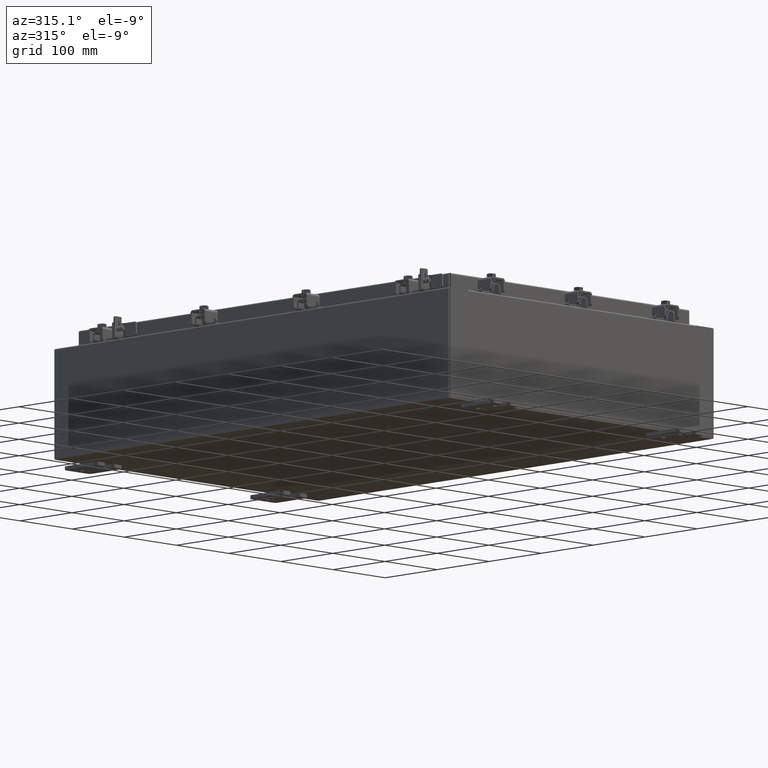
[diagram: clean part render]
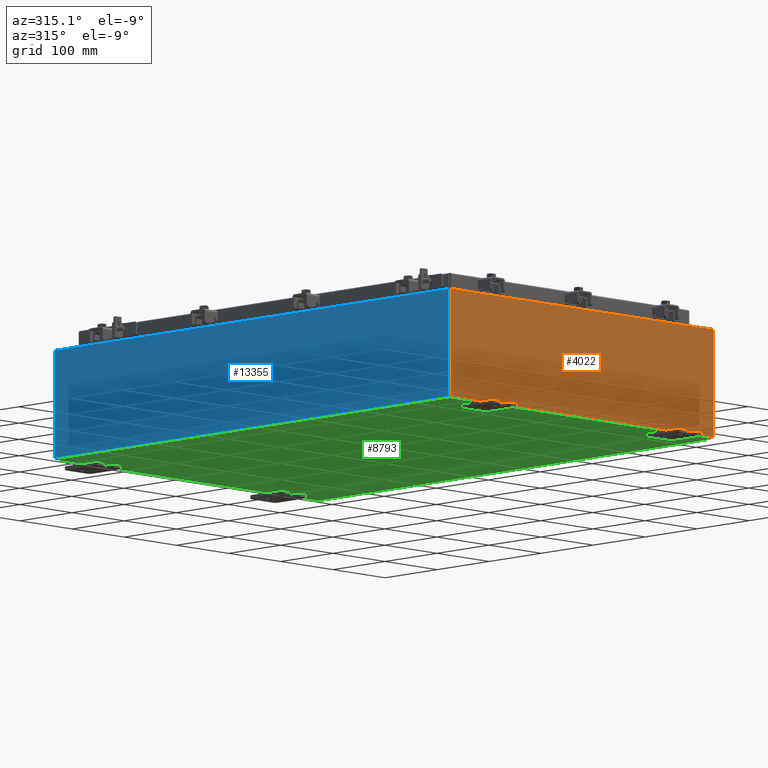
[diagram: same view with three faces highlighted in distinct colors, each labeled with its STEP entity id]
A machine part, auxiliary view with three faces highlighted in distinct colors.
Their STEP definitions:

[orange] entity #4022 — the highlighted planar face has unit normal (-0, 1, -0).
#361 = LINE ( 'NONE', #4960, #18876 ) ;
#617 = AXIS2_PLACEMENT_3D ( 'NONE', #15962, #12164, #10840 ) ;
#765 = EDGE_CURVE ( 'NONE', #15380, #2834, #9343, .T. ) ;
#1337 = DIRECTION ( 'NONE',  ( -0.0000000000000000000, -0.0000000000000000000, 1.000000000000000000 ) ) ;
#1444 = DIRECTION ( 'NONE',  ( 0.0000000000000000000, 0.0000000000000000000, -1.000000000000000000 ) ) ;
#1498 = LINE ( 'NONE', #19667, #10547 ) ;
#1935 = ORIENTED_EDGE ( 'NONE', *, *, #16333, .F. ) ;
#1980 = EDGE_CURVE ( 'NONE', #3355, #13445, #17115, .T. ) ;
#2502 = DIRECTION ( 'NONE',  ( -6.510859170600007400E-014, 0.0000000000000000000, -1.000000000000000000 ) ) ;
#2680 = VERTEX_POINT ( 'NONE', #15610 ) ;
#2730 = ORIENTED_EDGE ( 'NONE', *, *, #14620, .T. ) ;
#2772 = EDGE_CURVE ( 'NONE', #13081, #22102, #8419, .T. ) ;
#2834 = VERTEX_POINT ( 'NONE', #8392 ) ;
#2996 = LINE ( 'NONE', #12126, #5269 ) ;
#3180 = CIRCLE ( 'NONE', #20034, 0.01867500000000003900 ) ;
#3181 = CARTESIAN_POINT ( 'NONE',  ( 8.655875000000000000, 0.0000000000000000000, 2.874950000000000600 ) ) ;
#3355 = VERTEX_POINT ( 'NONE', #12129 ) ;
#3382 = ORIENTED_EDGE ( 'NONE', *, *, #18036, .F. ) ;
#3774 = VERTEX_POINT ( 'NONE', #17559 ) ;
#3872 = EDGE_LOOP ( 'NONE', ( #5293, #3382, #20896, #19056, #1935, #18359, #15242, #15499, #2730, #12896, #22228, #5563 ) ) ;
#3876 = LINE ( 'NONE', #15454, #17058 ) ;
#4003 = VECTOR ( 'NONE', #2502, 39.37007874015748100 ) ;
#4022 = ADVANCED_FACE ( 'NONE', ( #19827 ), #14171, .F. ) ;
#4045 = VECTOR ( 'NONE', #13422, 39.37007874015748100 ) ;
#4200 = DIRECTION ( 'NONE',  ( 0.0000000000000000000, 0.0000000000000000000, -1.000000000000000000 ) ) ;
#4309 = DIRECTION ( 'NONE',  ( 1.000000000000000000, 0.0000000000000000000, 0.0000000000000000000 ) ) ;
#4634 = VECTOR ( 'NONE', #22144, 39.37007874015748100 ) ;
#4960 = CARTESIAN_POINT ( 'NONE',  ( -9.925300000000000000, 0.0000000000000000000, 2.925300000000000500 ) ) ;
#5269 = VECTOR ( 'NONE', #1337, 39.37007874015748100 ) ;
#5293 = ORIENTED_EDGE ( 'NONE', *, *, #765, .F. ) ;
#5563 = ORIENTED_EDGE ( 'NONE', *, *, #7514, .T. ) ;
#6762 = CARTESIAN_POINT ( 'NONE',  ( -8.674549999999996400, 0.0000000000000000000, 2.874950000000000600 ) ) ;
#7065 = VERTEX_POINT ( 'NONE', #21182 ) ;
#7195 = CARTESIAN_POINT ( 'NONE',  ( -8.655874999999996400, 0.0000000000000000000, 2.874950000000000600 ) ) ;
#7514 = EDGE_CURVE ( 'NONE', #19565, #2834, #361, .T. ) ;
#7604 = VECTOR ( 'NONE', #4200, 39.37007874015748100 ) ;
#8230 = DIRECTION ( 'NONE',  ( -0.0000000000000000000, 1.000000000000000000, -0.0000000000000000000 ) ) ;
#8392 = CARTESIAN_POINT ( 'NONE',  ( -8.674549999999996400, 0.0000000000000000000, 2.925300000000000500 ) ) ;
#8419 = CIRCLE ( 'NONE', #20561, 0.01867500000000003900 ) ;
#8449 = CARTESIAN_POINT ( 'NONE',  ( -8.674549999999996400, -0.0000000000000000000, 0.0000000000000000000 ) ) ;
#9001 = DIRECTION ( 'NONE',  ( 0.0000000000000000000, 0.0000000000000000000, -1.000000000000000000 ) ) ;
#9343 = LINE ( 'NONE', #8449, #22969 ) ;
#9363 = VERTEX_POINT ( 'NONE', #22438 ) ;
#9443 = LINE ( 'NONE', #18604, #4634 ) ;
#10065 = CARTESIAN_POINT ( 'NONE',  ( -8.637199999999996400, -0.0000000000000000000, 2.874950000000000600 ) ) ;
#10547 = VECTOR ( 'NONE', #21462, 39.37007874015748100 ) ;
#10840 = DIRECTION ( 'NONE',  ( 0.0000000000000000000, -0.0000000000000000000, -1.000000000000000000 ) ) ;
#11354 = EDGE_CURVE ( 'NONE', #9363, #7065, #16000, .T. ) ;
#11639 = CARTESIAN_POINT ( 'NONE',  ( 8.637200000000000000, 0.0000000000000000000, 0.0000000000000000000 ) ) ;
#12126 = CARTESIAN_POINT ( 'NONE',  ( -9.925300000000000000, 0.0000000000000000000, 2.925300000000000500 ) ) ;
#12129 = CARTESIAN_POINT ( 'NONE',  ( -8.637199999999996400, 1.024442997624098700E-016, 2.912300000000000600 ) ) ;
#12164 = DIRECTION ( 'NONE',  ( 0.0000000000000000000, -1.000000000000000000, 0.0000000000000000000 ) ) ;
#12839 = EDGE_CURVE ( 'NONE', #2680, #3774, #3876, .T. ) ;
#12896 = ORIENTED_EDGE ( 'NONE', *, *, #12839, .T. ) ;
#13081 = VERTEX_POINT ( 'NONE', #21479 ) ;
#13263 = CARTESIAN_POINT ( 'NONE',  ( 8.674549999999813500, -0.0000000000000000000, -5.647877341832707700E-013 ) ) ;
#13422 = DIRECTION ( 'NONE',  ( 0.0000000000000000000, 0.0000000000000000000, 1.000000000000000000 ) ) ;
#13434 = CARTESIAN_POINT ( 'NONE',  ( 8.637200000000000000, 0.0000000000000000000, 2.874950000000000600 ) ) ;
#13445 = VERTEX_POINT ( 'NONE', #10065 ) ;
#14171 = PLANE ( 'NONE',  #617 ) ;
#14494 = VERTEX_POINT ( 'NONE', #19780 ) ;
#14620 = EDGE_CURVE ( 'NONE', #7065, #2680, #9443, .T. ) ;
#15242 = ORIENTED_EDGE ( 'NONE', *, *, #18281, .F. ) ;
#15380 = VERTEX_POINT ( 'NONE', #6762 ) ;
#15454 = CARTESIAN_POINT ( 'NONE',  ( -9.925300000000000000, 0.0000000000000000000, -2.925299999999999600 ) ) ;
#15499 = ORIENTED_EDGE ( 'NONE', *, *, #11354, .T. ) ;
#15610 = CARTESIAN_POINT ( 'NONE',  ( 9.925300000000000000, 0.0000000000000000000, -2.925299999999999600 ) ) ;
#15962 = CARTESIAN_POINT ( 'NONE',  ( 0.0000000000000000000, 0.0000000000000000000, 0.0000000000000000000 ) ) ;
#16000 = LINE ( 'NONE', #20437, #16565 ) ;
#16333 = EDGE_CURVE ( 'NONE', #22102, #14494, #23054, .T. ) ;
#16565 = VECTOR ( 'NONE', #4309, 39.37007874015748100 ) ;
#16729 = EDGE_CURVE ( 'NONE', #3355, #14494, #1498, .T. ) ;
#17058 = VECTOR ( 'NONE', #17206, 39.37007874015748100 ) ;
#17115 = LINE ( 'NONE', #20560, #7604 ) ;
#17206 = DIRECTION ( 'NONE',  ( -1.000000000000000000, -0.0000000000000000000, -0.0000000000000000000 ) ) ;
#17510 = DIRECTION ( 'NONE',  ( 1.000000000000000000, 0.0000000000000000000, 0.0000000000000000000 ) ) ;
#17559 = CARTESIAN_POINT ( 'NONE',  ( -9.925300000000000000, 0.0000000000000000000, -2.925299999999999600 ) ) ;
#17793 = LINE ( 'NONE', #13263, #4003 ) ;
#18036 = EDGE_CURVE ( 'NONE', #13445, #15380, #3180, .T. ) ;
#18265 = DIRECTION ( 'NONE',  ( 0.0000000000000000000, 0.0000000000000000000, 1.000000000000000000 ) ) ;
#18281 = EDGE_CURVE ( 'NONE', #9363, #13081, #17793, .T. ) ;
#18359 = ORIENTED_EDGE ( 'NONE', *, *, #2772, .F. ) ;
#18604 = CARTESIAN_POINT ( 'NONE',  ( 9.925300000000000000, 0.0000000000000000000, 2.925300000000000500 ) ) ;
#18876 = VECTOR ( 'NONE', #17510, 39.37007874015748100 ) ;
#19056 = ORIENTED_EDGE ( 'NONE', *, *, #16729, .T. ) ;
#19565 = VERTEX_POINT ( 'NONE', #20945 ) ;
#19667 = CARTESIAN_POINT ( 'NONE',  ( -8.637200000000000000, 1.024442997624098700E-016, 2.912300000000000600 ) ) ;
#19687 = DIRECTION ( 'NONE',  ( -0.0000000000000000000, 1.000000000000000000, -0.0000000000000000000 ) ) ;
#19780 = CARTESIAN_POINT ( 'NONE',  ( 8.637200000000000000, 0.0000000000000000000, 2.912300000000000600 ) ) ;
#19827 = FACE_OUTER_BOUND ( 'NONE', #3872, .T. ) ;
#20034 = AXIS2_PLACEMENT_3D ( 'NONE', #7195, #19687, #9001 ) ;
#20437 = CARTESIAN_POINT ( 'NONE',  ( -9.925300000000000000, 0.0000000000000000000, 2.925300000000000500 ) ) ;
#20560 = CARTESIAN_POINT ( 'NONE',  ( -8.637199999999996400, -0.0000000000000000000, 0.0000000000000000000 ) ) ;
#20561 = AXIS2_PLACEMENT_3D ( 'NONE', #3181, #8230, #1444 ) ;
#20896 = ORIENTED_EDGE ( 'NONE', *, *, #1980, .F. ) ;
#20945 = CARTESIAN_POINT ( 'NONE',  ( -9.925300000000000000, 0.0000000000000000000, 2.925300000000000500 ) ) ;
#21182 = CARTESIAN_POINT ( 'NONE',  ( 9.925300000000000000, 0.0000000000000000000, 2.925300000000000500 ) ) ;
#21462 = DIRECTION ( 'NONE',  ( 1.000000000000000000, 0.0000000000000000000, 0.0000000000000000000 ) ) ;
#21479 = CARTESIAN_POINT ( 'NONE',  ( 8.674550000000000000, 0.0000000000000000000, 2.874950000000000600 ) ) ;
#22102 = VERTEX_POINT ( 'NONE', #13434 ) ;
#22144 = DIRECTION ( 'NONE',  ( 0.0000000000000000000, 0.0000000000000000000, -1.000000000000000000 ) ) ;
#22228 = ORIENTED_EDGE ( 'NONE', *, *, #22237, .T. ) ;
#22237 = EDGE_CURVE ( 'NONE', #3774, #19565, #2996, .T. ) ;
#22438 = CARTESIAN_POINT ( 'NONE',  ( 8.674550000000001800, 0.0000000000000000000, 2.925300000000000500 ) ) ;
#22969 = VECTOR ( 'NONE', #18265, 39.37007874015748100 ) ;
#23054 = LINE ( 'NONE', #11639, #4045 ) ;

[blue] entity #13355 — the highlighted planar face has unit normal (1, 0, 0).
#284 = VERTEX_POINT ( 'NONE', #18556 ) ;
#694 = VECTOR ( 'NONE', #6814, 39.37007874015748100 ) ;
#1364 = CARTESIAN_POINT ( 'NONE',  ( -10.00000000000000000, 14.92530000000000500, -3.345627304943080600E-014 ) ) ;
#2309 = CARTESIAN_POINT ( 'NONE',  ( -10.00000000000002000, 14.92530000000000500, 5.837599999999999200 ) ) ;
#2690 = VERTEX_POINT ( 'NONE', #4555 ) ;
#3314 = VECTOR ( 'NONE', #17147, 39.37007874015748100 ) ;
#3914 = AXIS2_PLACEMENT_3D ( 'NONE', #18724, #9824, #22268 ) ;
#4555 = CARTESIAN_POINT ( 'NONE',  ( -10.00000000000000000, 14.92530000000000500, 0.01299999999999985900 ) ) ;
#4763 = VERTEX_POINT ( 'NONE', #16676 ) ;
#5458 = CARTESIAN_POINT ( 'NONE',  ( -10.00000000000000000, 14.92530000000000500, 0.01299999999999986400 ) ) ;
#5503 = LINE ( 'NONE', #1364, #694 ) ;
#6390 = CARTESIAN_POINT ( 'NONE',  ( -10.00000000000001800, -14.92529999999999600, 5.837599999999999200 ) ) ;
#6814 = DIRECTION ( 'NONE',  ( 3.319545939341922800E-015, 0.0000000000000000000, -1.000000000000000000 ) ) ;
#7285 = DIRECTION ( 'NONE',  ( -0.0000000000000000000, 1.000000000000000000, -0.0000000000000000000 ) ) ;
#8023 = PLANE ( 'NONE',  #3914 ) ;
#8082 = FACE_OUTER_BOUND ( 'NONE', #9972, .T. ) ;
#9824 = DIRECTION ( 'NONE',  ( 1.000000000000000000, 0.0000000000000000000, 3.319545939341922800E-015 ) ) ;
#9972 = EDGE_LOOP ( 'NONE', ( #11164, #16743, #11273, #16842 ) ) ;
#11164 = ORIENTED_EDGE ( 'NONE', *, *, #21508, .T. ) ;
#11273 = ORIENTED_EDGE ( 'NONE', *, *, #21793, .F. ) ;
#12598 = LINE ( 'NONE', #5458, #22592 ) ;
#13355 = ADVANCED_FACE ( 'NONE', ( #8082 ), #8023, .F. ) ;
#14323 = EDGE_CURVE ( 'NONE', #21285, #2690, #5503, .T. ) ;
#15778 = CARTESIAN_POINT ( 'NONE',  ( -10.00000000000000000, -14.92529999999999600, -3.345627304943080600E-014 ) ) ;
#16676 = CARTESIAN_POINT ( 'NONE',  ( -10.00000000000000000, -14.92529999999999600, 0.01299999999999986400 ) ) ;
#16743 = ORIENTED_EDGE ( 'NONE', *, *, #14323, .T. ) ;
#16842 = ORIENTED_EDGE ( 'NONE', *, *, #22310, .T. ) ;
#17147 = DIRECTION ( 'NONE',  ( 0.0000000000000000000, 1.000000000000000000, 0.0000000000000000000 ) ) ;
#18556 = CARTESIAN_POINT ( 'NONE',  ( -10.00000000000001800, -14.92529999999999600, 5.837599999999999200 ) ) ;
#18724 = CARTESIAN_POINT ( 'NONE',  ( -10.00000000000000000, 0.0000000000000000000, -3.345627304943080600E-014 ) ) ;
#20929 = VECTOR ( 'NONE', #22899, 39.37007874015748100 ) ;
#21285 = VERTEX_POINT ( 'NONE', #2309 ) ;
#21498 = LINE ( 'NONE', #15778, #20929 ) ;
#21508 = EDGE_CURVE ( 'NONE', #284, #21285, #21778, .T. ) ;
#21778 = LINE ( 'NONE', #6390, #3314 ) ;
#21793 = EDGE_CURVE ( 'NONE', #4763, #2690, #12598, .T. ) ;
#22268 = DIRECTION ( 'NONE',  ( 3.319545939341922800E-015, 0.0000000000000000000, -1.000000000000000000 ) ) ;
#22310 = EDGE_CURVE ( 'NONE', #4763, #284, #21498, .T. ) ;
#22592 = VECTOR ( 'NONE', #7285, 39.37007874015748100 ) ;
#22899 = DIRECTION ( 'NONE',  ( -3.319545939341922800E-015, 0.0000000000000000000, 1.000000000000000000 ) ) ;

[green] entity #8793 — the highlighted planar face has unit normal (0, 0, -1).
#1368 = DIRECTION ( 'NONE',  ( 1.000000000000000000, 0.0000000000000000000, 0.0000000000000000000 ) ) ;
#3172 = CARTESIAN_POINT ( 'NONE',  ( 0.0000000000000000000, 0.0000000000000000000, -0.07470000000000000300 ) ) ;
#4798 = ORIENTED_EDGE ( 'NONE', *, *, #17095, .F. ) ;
#4921 = LINE ( 'NONE', #10367, #13894 ) ;
#5124 = LINE ( 'NONE', #13132, #22971 ) ;
#6811 = PLANE ( 'NONE',  #15128 ) ;
#7010 = CARTESIAN_POINT ( 'NONE',  ( 9.912300000000000100, 14.92530000000000500, -0.07469999999999994700 ) ) ;
#7801 = CARTESIAN_POINT ( 'NONE',  ( 9.912300000000000100, -14.92529999999999600, -0.07470000000000000300 ) ) ;
#8470 = VECTOR ( 'NONE', #17365, 39.37007874015748100 ) ;
#8541 = LINE ( 'NONE', #20799, #17499 ) ;
#8613 = EDGE_LOOP ( 'NONE', ( #16513, #11094, #4798, #14864 ) ) ;
#8793 = ADVANCED_FACE ( 'NONE', ( #11312 ), #6811, .T. ) ;
#9192 = EDGE_CURVE ( 'NONE', #9917, #16316, #5124, .T. ) ;
#9917 = VERTEX_POINT ( 'NONE', #22259 ) ;
#10367 = CARTESIAN_POINT ( 'NONE',  ( -10.00000000000000000, -14.92529999999999600, -0.07470000000000000300 ) ) ;
#10440 = DIRECTION ( 'NONE',  ( -1.000000000000000000, 0.0000000000000000000, -0.0000000000000000000 ) ) ;
#10980 = CARTESIAN_POINT ( 'NONE',  ( -9.912300000000000100, 14.92530000000000500, -0.07470000000000000300 ) ) ;
#10990 = EDGE_CURVE ( 'NONE', #23047, #18268, #12675, .T. ) ;
#11094 = ORIENTED_EDGE ( 'NONE', *, *, #9192, .T. ) ;
#11312 = FACE_OUTER_BOUND ( 'NONE', #8613, .T. ) ;
#12675 = LINE ( 'NONE', #22608, #8470 ) ;
#13132 = CARTESIAN_POINT ( 'NONE',  ( -9.912300000000000100, -14.92529999999999600, -0.07469999999999994700 ) ) ;
#13894 = VECTOR ( 'NONE', #1368, 39.37007874015748100 ) ;
#14864 = ORIENTED_EDGE ( 'NONE', *, *, #10990, .T. ) ;
#14905 = DIRECTION ( 'NONE',  ( -0.0000000000000000000, 1.000000000000000000, -0.0000000000000000000 ) ) ;
#15128 = AXIS2_PLACEMENT_3D ( 'NONE', #3172, #21099, #10440 ) ;
#16055 = EDGE_CURVE ( 'NONE', #9917, #18268, #4921, .T. ) ;
#16316 = VERTEX_POINT ( 'NONE', #10980 ) ;
#16513 = ORIENTED_EDGE ( 'NONE', *, *, #16055, .F. ) ;
#17095 = EDGE_CURVE ( 'NONE', #23047, #16316, #8541, .T. ) ;
#17365 = DIRECTION ( 'NONE',  ( -0.0000000000000000000, -1.000000000000000000, -0.0000000000000000000 ) ) ;
#17499 = VECTOR ( 'NONE', #22564, 39.37007874015748100 ) ;
#18268 = VERTEX_POINT ( 'NONE', #7801 ) ;
#20799 = CARTESIAN_POINT ( 'NONE',  ( -10.00000000000000000, 14.92530000000000500, -0.07470000000000000300 ) ) ;
#21099 = DIRECTION ( 'NONE',  ( 0.0000000000000000000, 0.0000000000000000000, -1.000000000000000000 ) ) ;
#22259 = CARTESIAN_POINT ( 'NONE',  ( -9.912300000000000100, -14.92529999999999600, -0.07469999999999994700 ) ) ;
#22564 = DIRECTION ( 'NONE',  ( -1.000000000000000000, -0.0000000000000000000, -0.0000000000000000000 ) ) ;
#22608 = CARTESIAN_POINT ( 'NONE',  ( 9.912300000000000100, 14.92530000000000500, -0.07469999999999994700 ) ) ;
#22971 = VECTOR ( 'NONE', #14905, 39.37007874015748100 ) ;
#23047 = VERTEX_POINT ( 'NONE', #7010 ) ;